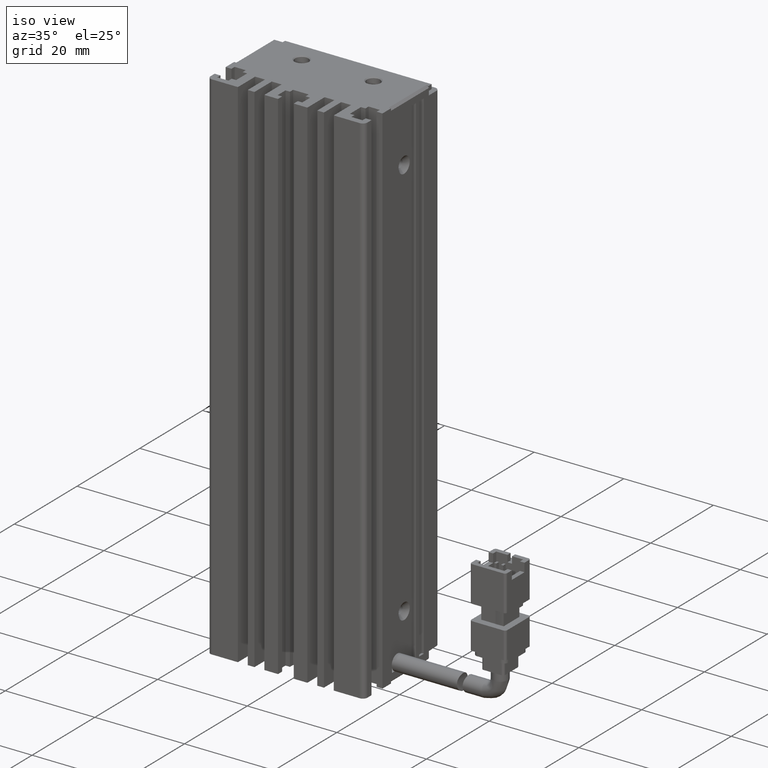
[diagram: clean part render]
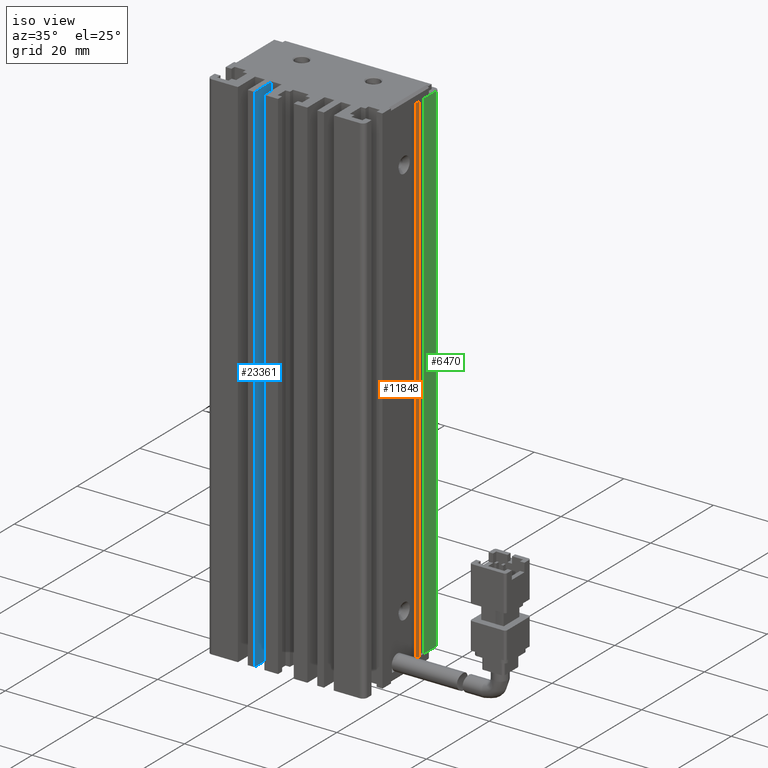
[diagram: same view with three faces highlighted in distinct colors, each labeled with its STEP entity id]
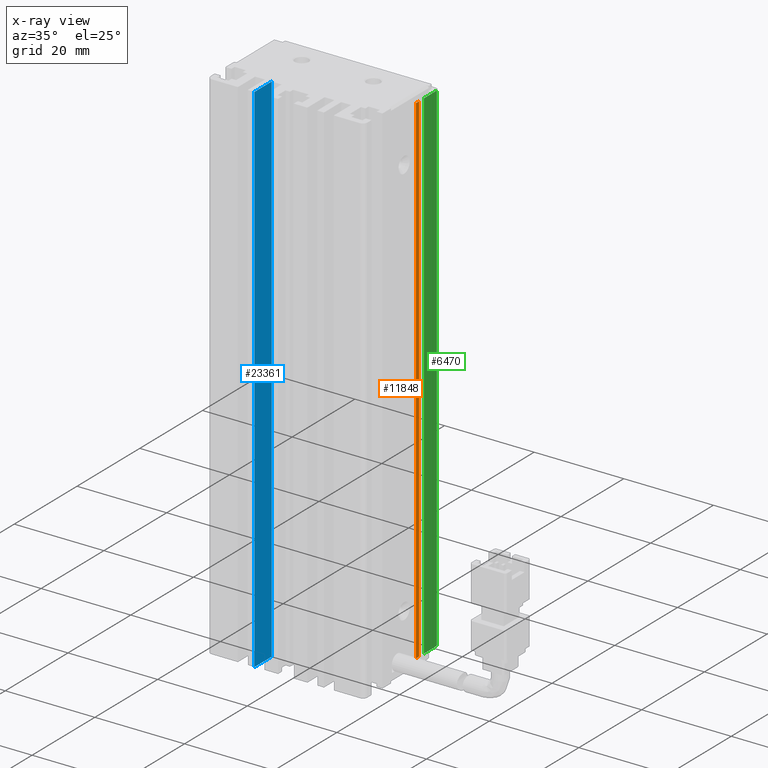
[diagram: x-ray of the same camera — body ghosted, the three highlighted faces saturated]
A machine part, iso view with three faces highlighted in distinct colors.
The next image is the same camera in x-ray (body ghosted, the three faces saturated) — at least one of them is partly hidden behind the body in this view.
Their STEP definitions:

[orange] entity #11848 — the highlighted planar face has unit normal (-1, 0, 0).
#647 = ORIENTED_EDGE ( 'NONE', *, *, #20467, .F. ) ;
#1062 = ORIENTED_EDGE ( 'NONE', *, *, #29667, .F. ) ;
#1155 = FACE_OUTER_BOUND ( 'NONE', #25827, .T. ) ;
#1836 = DIRECTION ( 'NONE',  ( 0.0000000000000000000, 1.000000000000000000, -0.0000000000000000000 ) ) ;
#2411 = DIRECTION ( 'NONE',  ( -0.0000000000000000000, -1.000000000000000000, 0.0000000000000000000 ) ) ;
#2509 = DIRECTION ( 'NONE',  ( -0.0000000000000000000, 0.0000000000000000000, 1.000000000000000000 ) ) ;
#3952 = ORIENTED_EDGE ( 'NONE', *, *, #17771, .F. ) ;
#4500 = DIRECTION ( 'NONE',  ( 0.0000000000000000000, 0.0000000000000000000, 1.000000000000000000 ) ) ;
#6048 = LINE ( 'NONE', #27202, #45754 ) ;
#9196 = VERTEX_POINT ( 'NONE', #15818 ) ;
#9457 = VECTOR ( 'NONE', #2509, 1000.000000000000000 ) ;
#11218 = CARTESIAN_POINT ( 'NONE',  ( 58.42537974683542500, 28.49073232304837000, -58.99999999999999300 ) ) ;
#11848 = ADVANCED_FACE ( 'NONE', ( #1155 ), #17844, .F. ) ;
#13093 = EDGE_CURVE ( 'NONE', #34528, #9196, #31284, .T. ) ;
#15818 = CARTESIAN_POINT ( 'NONE',  ( 58.42537974683542500, 27.49073232304838000, -58.99999999999999300 ) ) ;
#17771 = EDGE_CURVE ( 'NONE', #9196, #46320, #6048, .T. ) ;
#17844 = PLANE ( 'NONE',  #42038 ) ;
#20467 = EDGE_CURVE ( 'NONE', #46320, #46092, #22813, .T. ) ;
#22813 = LINE ( 'NONE', #49021, #52518 ) ;
#25827 = EDGE_LOOP ( 'NONE', ( #3952, #42742, #1062, #647 ) ) ;
#27202 = CARTESIAN_POINT ( 'NONE',  ( 58.42537974683542500, 7.083797468354437600, -59.00000000000000000 ) ) ;
#27704 = VECTOR ( 'NONE', #2411, 1000.000000000000000 ) ;
#29667 = EDGE_CURVE ( 'NONE', #46092, #34528, #48207, .T. ) ;
#30919 = DIRECTION ( 'NONE',  ( -0.0000000000000000000, -0.0000000000000000000, -1.000000000000000000 ) ) ;
#31246 = CARTESIAN_POINT ( 'NONE',  ( 58.42537974683542500, 28.49073232304837000, -171.0000000000000000 ) ) ;
#31284 = LINE ( 'NONE', #49288, #9457 ) ;
#31307 = CARTESIAN_POINT ( 'NONE',  ( 58.42537974683542500, 7.083797468354437600, -171.0000000000000000 ) ) ;
#34528 = VERTEX_POINT ( 'NONE', #44808 ) ;
#42038 = AXIS2_PLACEMENT_3D ( 'NONE', #46844, #51835, #4500 ) ;
#42742 = ORIENTED_EDGE ( 'NONE', *, *, #13093, .F. ) ;
#44808 = CARTESIAN_POINT ( 'NONE',  ( 58.42537974683542500, 27.49073232304838000, -171.0000000000000000 ) ) ;
#45754 = VECTOR ( 'NONE', #1836, 1000.000000000000000 ) ;
#46092 = VERTEX_POINT ( 'NONE', #31246 ) ;
#46320 = VERTEX_POINT ( 'NONE', #11218 ) ;
#46844 = CARTESIAN_POINT ( 'NONE',  ( 58.42537974683542500, 7.083797468354437600, -57.00000000000000000 ) ) ;
#48207 = LINE ( 'NONE', #31307, #27704 ) ;
#49021 = CARTESIAN_POINT ( 'NONE',  ( 58.42537974683542500, 28.49073232304837300, -57.00000000000000000 ) ) ;
#49288 = CARTESIAN_POINT ( 'NONE',  ( 58.42537974683542500, 27.49073232304838000, -57.00000000000000000 ) ) ;
#51835 = DIRECTION ( 'NONE',  ( -1.000000000000000000, 0.0000000000000000000, 0.0000000000000000000 ) ) ;
#52518 = VECTOR ( 'NONE', #30919, 1000.000000000000000 ) ;

[blue] entity #23361 — the highlighted planar face has unit normal (-1, 0, 0).
#548 = CARTESIAN_POINT ( 'NONE',  ( 33.92537974683543200, 7.083797468354437600, -57.00000000000000000 ) ) ;
#1029 = CARTESIAN_POINT ( 'NONE',  ( 33.92537974683543200, 10.99073232304837000, -57.00000000000000000 ) ) ;
#2081 = CARTESIAN_POINT ( 'NONE',  ( 33.92537974683543200, 16.49073232304837000, -57.00000000000000000 ) ) ;
#4568 = CARTESIAN_POINT ( 'NONE',  ( 33.92537974683543200, 10.99073232304837000, -57.00000000000000000 ) ) ;
#5794 = VECTOR ( 'NONE', #48196, 1000.000000000000000 ) ;
#8221 = EDGE_LOOP ( 'NONE', ( #33184, #24779, #23427, #37565 ) ) ;
#9240 = PLANE ( 'NONE',  #46002 ) ;
#11262 = VERTEX_POINT ( 'NONE', #54073 ) ;
#12100 = EDGE_CURVE ( 'NONE', #11262, #50083, #44722, .T. ) ;
#13110 = DIRECTION ( 'NONE',  ( 0.0000000000000000000, 0.0000000000000000000, 1.000000000000000000 ) ) ;
#15613 = VERTEX_POINT ( 'NONE', #4568 ) ;
#16763 = CARTESIAN_POINT ( 'NONE',  ( 33.92537974683543200, 16.49073232304837000, -57.00000000000000000 ) ) ;
#18277 = DIRECTION ( 'NONE',  ( 0.0000000000000000000, 0.0000000000000000000, 1.000000000000000000 ) ) ;
#18709 = CARTESIAN_POINT ( 'NONE',  ( 33.92537974683543200, 7.083797468354437600, -57.00000000000000000 ) ) ;
#23361 = ADVANCED_FACE ( 'NONE', ( #53699 ), #9240, .F. ) ;
#23427 = ORIENTED_EDGE ( 'NONE', *, *, #35764, .F. ) ;
#24779 = ORIENTED_EDGE ( 'NONE', *, *, #43488, .F. ) ;
#25321 = VECTOR ( 'NONE', #18277, 1000.000000000000000 ) ;
#27211 = VERTEX_POINT ( 'NONE', #37214 ) ;
#32225 = DIRECTION ( 'NONE',  ( 0.0000000000000000000, 0.0000000000000000000, 1.000000000000000000 ) ) ;
#33184 = ORIENTED_EDGE ( 'NONE', *, *, #12100, .T. ) ;
#34762 = DIRECTION ( 'NONE',  ( -1.000000000000000000, 0.0000000000000000000, 0.0000000000000000000 ) ) ;
#35764 = EDGE_CURVE ( 'NONE', #27211, #15613, #36544, .T. ) ;
#36544 = LINE ( 'NONE', #1029, #25321 ) ;
#37214 = CARTESIAN_POINT ( 'NONE',  ( 33.92537974683543200, 10.99073232304837000, -173.0000000000000300 ) ) ;
#37565 = ORIENTED_EDGE ( 'NONE', *, *, #48302, .T. ) ;
#39893 = CARTESIAN_POINT ( 'NONE',  ( 33.92537974683543200, 7.083797468354437600, -173.0000000000000300 ) ) ;
#41479 = LINE ( 'NONE', #18709, #46752 ) ;
#43488 = EDGE_CURVE ( 'NONE', #15613, #50083, #41479, .T. ) ;
#44087 = VECTOR ( 'NONE', #32225, 1000.000000000000000 ) ;
#44722 = LINE ( 'NONE', #2081, #44087 ) ;
#45505 = LINE ( 'NONE', #39893, #5794 ) ;
#46002 = AXIS2_PLACEMENT_3D ( 'NONE', #548, #34762, #13110 ) ;
#46752 = VECTOR ( 'NONE', #48394, 1000.000000000000000 ) ;
#48196 = DIRECTION ( 'NONE',  ( 0.0000000000000000000, 1.000000000000000000, -0.0000000000000000000 ) ) ;
#48302 = EDGE_CURVE ( 'NONE', #27211, #11262, #45505, .T. ) ;
#48394 = DIRECTION ( 'NONE',  ( 0.0000000000000000000, 1.000000000000000000, -0.0000000000000000000 ) ) ;
#50083 = VERTEX_POINT ( 'NONE', #16763 ) ;
#53699 = FACE_OUTER_BOUND ( 'NONE', #8221, .T. ) ;
#54073 = CARTESIAN_POINT ( 'NONE',  ( 33.92537974683543200, 16.49073232304837000, -173.0000000000000300 ) ) ;

[green] entity #6470 — the highlighted planar face has unit normal (-1, 0, 0).
#2944 = DIRECTION ( 'NONE',  ( 0.0000000000000000000, 0.0000000000000000000, 1.000000000000000000 ) ) ;
#3503 = VECTOR ( 'NONE', #54277, 1000.000000000000000 ) ;
#3866 = VECTOR ( 'NONE', #12075, 1000.000000000000000 ) ;
#4006 = CARTESIAN_POINT ( 'NONE',  ( 58.42537974683542500, 29.99073232304837300, -171.0000000000000000 ) ) ;
#4329 = AXIS2_PLACEMENT_3D ( 'NONE', #28312, #23892, #2944 ) ;
#6470 = ADVANCED_FACE ( 'NONE', ( #39127 ), #24076, .F. ) ;
#8041 = EDGE_CURVE ( 'NONE', #22308, #49861, #29618, .T. ) ;
#10506 = LINE ( 'NONE', #16543, #3866 ) ;
#10827 = DIRECTION ( 'NONE',  ( -0.0000000000000000000, -1.000000000000000000, -0.0000000000000000000 ) ) ;
#11368 = ORIENTED_EDGE ( 'NONE', *, *, #25597, .F. ) ;
#12075 = DIRECTION ( 'NONE',  ( -0.0000000000000000000, -1.000000000000000000, -0.0000000000000000000 ) ) ;
#14343 = EDGE_CURVE ( 'NONE', #17831, #49861, #46224, .T. ) ;
#15497 = CARTESIAN_POINT ( 'NONE',  ( 58.42537974683542500, 33.99073232304837700, -59.00000000000000000 ) ) ;
#16543 = CARTESIAN_POINT ( 'NONE',  ( 58.42537974683542500, 34.99073232304837700, -171.0000000000000000 ) ) ;
#17215 = EDGE_LOOP ( 'NONE', ( #47596, #40332, #52710, #11368 ) ) ;
#17831 = VERTEX_POINT ( 'NONE', #15497 ) ;
#22308 = VERTEX_POINT ( 'NONE', #4006 ) ;
#23647 = CARTESIAN_POINT ( 'NONE',  ( 58.42537974683542500, 29.99073232304837300, -58.99999999999999300 ) ) ;
#23764 = VECTOR ( 'NONE', #10827, 1000.000000000000000 ) ;
#23892 = DIRECTION ( 'NONE',  ( -1.000000000000000000, 0.0000000000000000000, 0.0000000000000000000 ) ) ;
#24076 = PLANE ( 'NONE',  #4329 ) ;
#24321 = VECTOR ( 'NONE', #45935, 1000.000000000000000 ) ;
#24912 = CARTESIAN_POINT ( 'NONE',  ( 58.42537974683542500, 33.99073232304837700, -57.00000000000000000 ) ) ;
#25597 = EDGE_CURVE ( 'NONE', #17831, #29839, #51801, .T. ) ;
#28312 = CARTESIAN_POINT ( 'NONE',  ( 58.42537974683542500, 7.083797468354437600, -57.00000000000000000 ) ) ;
#29618 = LINE ( 'NONE', #41724, #24321 ) ;
#29839 = VERTEX_POINT ( 'NONE', #41631 ) ;
#31575 = CARTESIAN_POINT ( 'NONE',  ( 58.42537974683542500, 34.99073232304837700, -59.00000000000000000 ) ) ;
#39127 = FACE_OUTER_BOUND ( 'NONE', #17215, .T. ) ;
#39943 = EDGE_CURVE ( 'NONE', #29839, #22308, #10506, .T. ) ;
#40332 = ORIENTED_EDGE ( 'NONE', *, *, #8041, .F. ) ;
#41631 = CARTESIAN_POINT ( 'NONE',  ( 58.42537974683542500, 33.99073232304837700, -171.0000000000000000 ) ) ;
#41724 = CARTESIAN_POINT ( 'NONE',  ( 58.42537974683542500, 29.99073232304837700, -57.00000000000000000 ) ) ;
#45935 = DIRECTION ( 'NONE',  ( 0.0000000000000000000, 0.0000000000000000000, 1.000000000000000000 ) ) ;
#46224 = LINE ( 'NONE', #31575, #23764 ) ;
#47596 = ORIENTED_EDGE ( 'NONE', *, *, #14343, .T. ) ;
#49861 = VERTEX_POINT ( 'NONE', #23647 ) ;
#51801 = LINE ( 'NONE', #24912, #3503 ) ;
#52710 = ORIENTED_EDGE ( 'NONE', *, *, #39943, .F. ) ;
#54277 = DIRECTION ( 'NONE',  ( -0.0000000000000000000, -0.0000000000000000000, -1.000000000000000000 ) ) ;